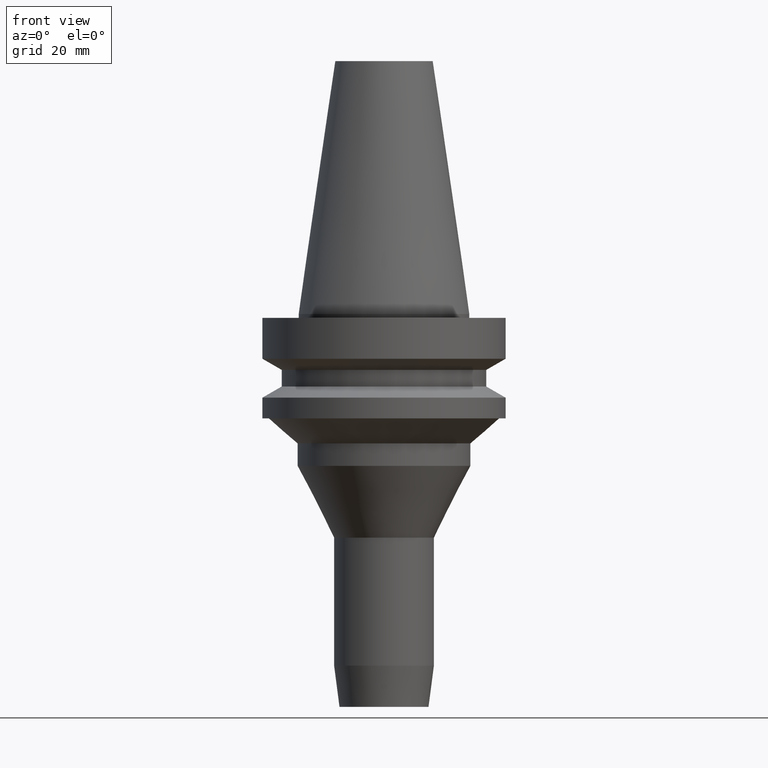
[diagram: clean part render]
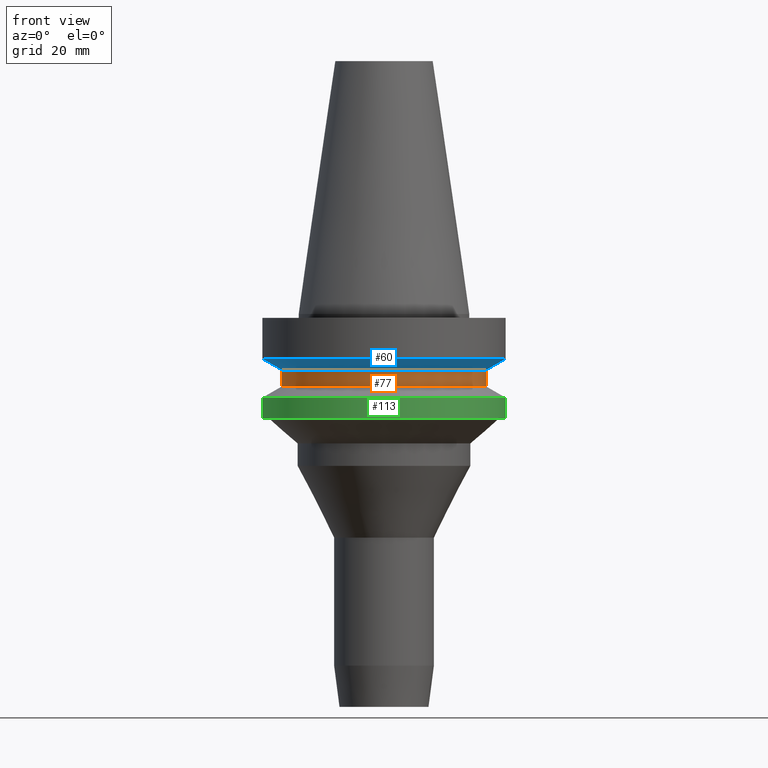
[diagram: same view with three faces highlighted in distinct colors, each labeled with its STEP entity id]
A machine part, front view with three faces highlighted in distinct colors.
Their STEP definitions:

[orange] entity #77 — the highlighted cylindrical surface (bore or boss wall) has radius 26.5 mm, axis along (0, -0, -1).
#62=EDGE_CURVE('Unnamed[1]',#163,#163,#164,.T.);
#77=ADVANCED_FACE('Unnamed[1]',(#186,#187),#188,.T.);
#106=EDGE_CURVE('Unnamed[1]',#232,#232,#233,.T.);
#163=VERTEX_POINT('',#298);
#164=CIRCLE('',#299,26.4999999999994);
#186=FACE_BOUND('',#327,.T.);
#187=FACE_BOUND('',#328,.T.);
#188=CYLINDRICAL_SURFACE('',#329,26.4999999999997);
#232=VERTEX_POINT('',#385);
#233=CIRCLE('',#386,26.5);
#298=CARTESIAN_POINT('',(8.8494551369045E-016,26.4999999999995,-14.4522569986152));
#299=AXIS2_PLACEMENT_3D('',#454,#455,#456);
#327=EDGE_LOOP('',(#479));
#328=EDGE_LOOP('',(#480));
#329=AXIS2_PLACEMENT_3D('',#481,#482,#483);
#385=CARTESIAN_POINT('',(1.1479681728942E-015,26.5,-18.7477430013855));
#386=AXIS2_PLACEMENT_3D('',#531,#532,#533);
#454=CARTESIAN_POINT('',(8.84945513690449E-016,3.19878908347838E-014,-14.4522569986152));
#455=DIRECTION('',(6.12323399573677E-017,-5.58802637008037E-016,-1.0));
#456=DIRECTION('',(2.93896403075806E-032,1.0,-5.58802637008037E-016));
#479=ORIENTED_EDGE('',*,*,#106,.F.);
#480=ORIENTED_EDGE('',*,*,#62,.T.);
#481=CARTESIAN_POINT('',(1.01645684329232E-015,3.07877263819942E-014,-16.6000000000003));
#482=DIRECTION('',(6.12323399573677E-017,-5.58802637008037E-016,-1.0));
#483=DIRECTION('',(2.93896403075806E-032,1.0,-5.58802637008037E-016));
#531=CARTESIAN_POINT('',(1.1479681728942E-015,2.95875619292046E-014,-18.7477430013855));
#532=DIRECTION('',(6.12323399573677E-017,-5.58802637008037E-016,-1.0));
#533=DIRECTION('',(2.93896403075806E-032,1.0,-5.58802637008037E-016));

[blue] entity #60 — the highlighted conical surface has half-angle 60 deg.
#60=ADVANCED_FACE('Unnamed[1]',(#159,#160),#161,.T.);
#62=EDGE_CURVE('Unnamed[1]',#163,#163,#164,.T.);
#102=EDGE_CURVE('Unnamed[1]',#226,#226,#227,.T.);
#159=FACE_BOUND('',#293,.T.);
#160=FACE_BOUND('',#294,.T.);
#161=CONICAL_SURFACE('',#295,28.9999999999999,1.04719755119657);
#163=VERTEX_POINT('',#298);
#164=CIRCLE('',#299,26.4999999999994);
#226=VERTEX_POINT('',#377);
#227=CIRCLE('',#378,31.5000000000003);
#293=EDGE_LOOP('',(#449));
#294=EDGE_LOOP('',(#450));
#295=AXIS2_PLACEMENT_3D('',#451,#452,#453);
#298=CARTESIAN_POINT('',(8.8494551369045E-016,26.4999999999995,-14.4522569986152));
#299=AXIS2_PLACEMENT_3D('',#454,#455,#456);
#377=CARTESIAN_POINT('',(7.08182973902924E-016,31.5000000000004,-11.5655056526664));
#378=AXIS2_PLACEMENT_3D('',#525,#526,#527);
#449=ORIENTED_EDGE('',*,*,#62,.F.);
#450=ORIENTED_EDGE('',*,*,#102,.T.);
#451=CARTESIAN_POINT('',(7.96564243796687E-016,3.27944529670351E-014,-13.0088813256408));
#452=DIRECTION('',(-6.12323399573677E-017,5.58802637008037E-016,1.0));
#453=DIRECTION('',(2.93896403075806E-032,1.0,-5.58802637008037E-016));
#454=CARTESIAN_POINT('',(8.84945513690449E-016,3.19878908347838E-014,-14.4522569986152));
#455=DIRECTION('',(6.12323399573677E-017,-5.58802637008037E-016,-1.0));
#456=DIRECTION('',(2.93896403075806E-032,1.0,-5.58802637008037E-016));
#525=CARTESIAN_POINT('',(7.08182973902922E-016,3.36010150992865E-014,-11.5655056526663));
#526=DIRECTION('',(6.12323399573677E-017,-5.58802637008037E-016,-1.0));
#527=DIRECTION('',(2.93896403075806E-032,1.0,-5.58802637008037E-016));

[green] entity #113 — the highlighted cylindrical surface (bore or boss wall) has radius 31.5 mm, axis along (0, -0, -1).
#86=EDGE_CURVE('Unnamed[1]',#201,#201,#202,.T.);
#88=EDGE_CURVE('Unnamed[1]',#204,#204,#205,.T.);
#113=ADVANCED_FACE('Unnamed[1]',(#242,#243),#244,.T.);
#201=VERTEX_POINT('',#346);
#202=CIRCLE('',#347,31.5000000000004);
#204=VERTEX_POINT('',#350);
#205=CIRCLE('',#351,31.5000000000007);
#242=FACE_BOUND('',#398,.T.);
#243=FACE_BOUND('',#399,.T.);
#244=CYLINDRICAL_SURFACE('',#400,31.5000000000005);
#346=CARTESIAN_POINT('',(1.65327317884891E-015,31.5000000000004,-26.9999999999998));
#347=AXIS2_PLACEMENT_3D('',#496,#497,#498);
#350=CARTESIAN_POINT('',(1.32473071268174E-015,31.5000000000007,-21.6344943473346));
#351=AXIS2_PLACEMENT_3D('',#499,#500,#501);
#398=EDGE_LOOP('',(#541));
#399=EDGE_LOOP('',(#542));
#400=AXIS2_PLACEMENT_3D('',#543,#544,#545);
#496=CARTESIAN_POINT('',(1.65327317884891E-015,2.49761789571109E-014,-26.9999999999997));
#497=DIRECTION('',(6.12323399573677E-017,-5.58802637008037E-016,-1.0));
#498=DIRECTION('',(2.93896403075806E-032,1.0,-5.58802637008037E-016));
#499=CARTESIAN_POINT('',(1.32473071268174E-015,2.79744376647017E-014,-21.6344943473346));
#500=DIRECTION('',(6.12323399573677E-017,-5.58802637008037E-016,-1.0));
#501=DIRECTION('',(2.93896403075806E-032,1.0,-5.58802637008037E-016));
#541=ORIENTED_EDGE('',*,*,#86,.F.);
#542=ORIENTED_EDGE('',*,*,#88,.T.);
#543=CARTESIAN_POINT('',(1.48900194576533E-015,2.64753083109063E-014,-24.3172471736672));
#544=DIRECTION('',(6.12323399573677E-017,-5.58802637008037E-016,-1.0));
#545=DIRECTION('',(2.93896403075806E-032,1.0,-5.58802637008037E-016));